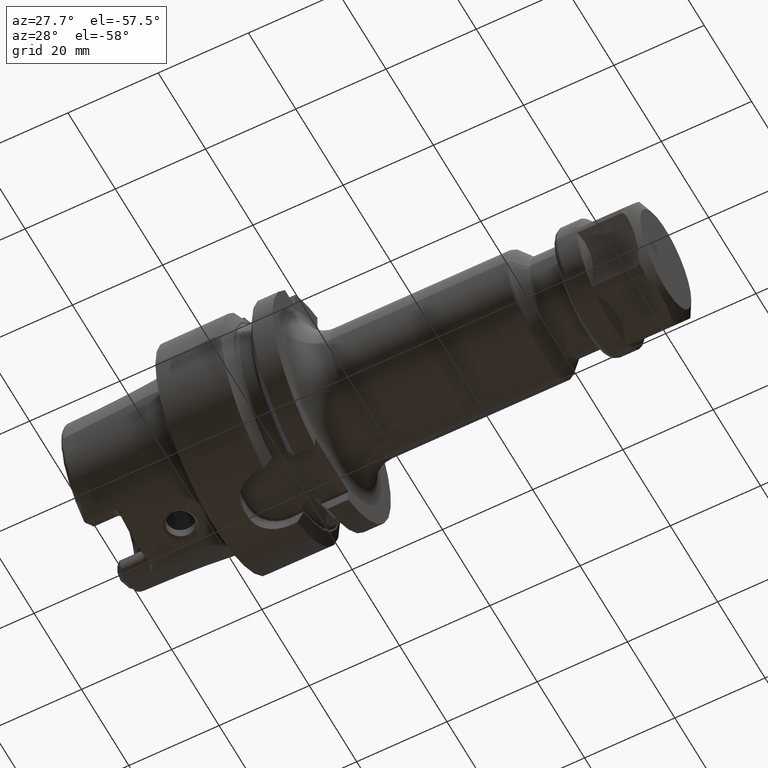
[diagram: clean part render]
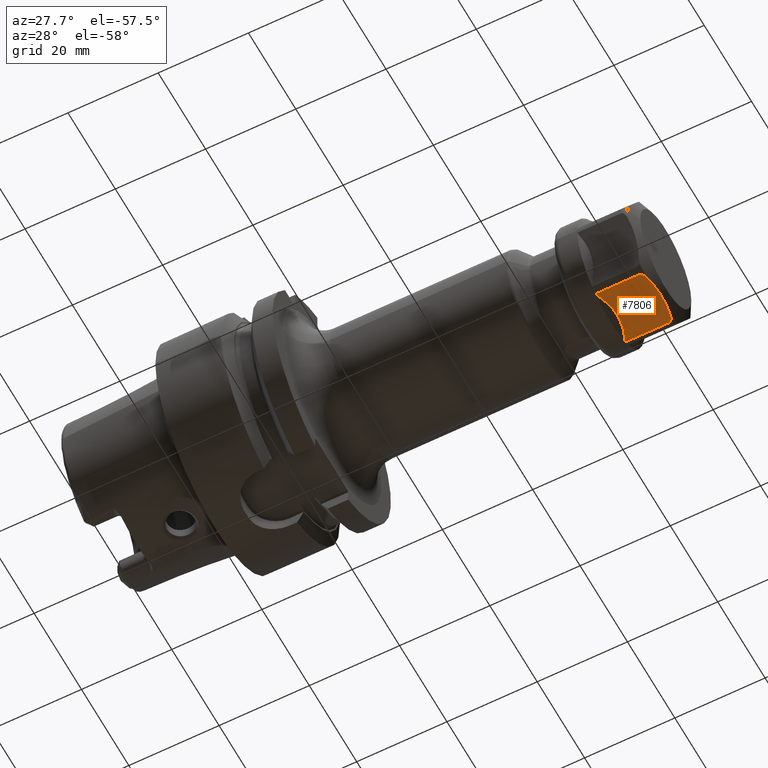
[diagram: same view with one face highlighted and labeled with its STEP entity id]
A machine part, auxiliary view. The second image highlights one B-rep face of the part: STEP entity #7806.
In plain terms, the highlighted planar face has unit normal (0, 0, 1).
Its self-contained STEP definition (entity closure, byte-faithful):
#6980=CARTESIAN_POINT('',(1.628445554338E1,-4.758216577669E0,-1.25E1));
#6981=CARTESIAN_POINT('',(1.644888995402E1,-3.957639929005E0,-1.25E1));
#6982=CARTESIAN_POINT('',(1.670318968294E1,-2.364269791047E0,-1.25E1));
#6983=CARTESIAN_POINT('',(1.683288207547E1,5.894560252869E-4,-1.25E1));
#6984=CARTESIAN_POINT('',(1.670310415631E1,2.364813039561E0,-1.25E1));
#6985=CARTESIAN_POINT('',(1.644884551611E1,3.957856282460E0,-1.25E1));
#6986=CARTESIAN_POINT('',(1.628445554338E1,4.758216577669E0,-1.25E1));
#7080=CARTESIAN_POINT('',(1.628445554338E1,4.758216577669E0,-1.25E1));
#7081=CARTESIAN_POINT('',(1.625780514735E1,4.887968523483E0,-1.25E1));
#7082=CARTESIAN_POINT('',(1.619635457926E1,5.141602008187E0,-1.25E1));
#7083=CARTESIAN_POINT('',(1.606561669937E1,5.515629625230E0,-1.25E1));
#7084=CARTESIAN_POINT('',(1.589737600801E1,5.841380073054E0,-1.25E1));
#7085=CARTESIAN_POINT('',(1.569295978880E1,6.098496038599E0,-1.25E1));
#7086=CARTESIAN_POINT('',(1.545738513995E1,6.265053289239E0,-1.25E1));
#7087=CARTESIAN_POINT('',(1.528945671766E1,6.304760106459E0,-1.25E1));
#7088=CARTESIAN_POINT('',(1.520192378865E1,6.304760106459E0,-1.25E1));
#7100=CARTESIAN_POINT('',(1.520192378865E1,-6.304760106459E0,-1.25E1));
#7101=CARTESIAN_POINT('',(1.529096662636E1,-6.304760106459E0,-1.25E1));
#7102=CARTESIAN_POINT('',(1.546146335283E1,-6.263924243604E0,-1.25E1));
#7103=CARTESIAN_POINT('',(1.570142638899E1,-6.090799069305E0,-1.25E1));
#7104=CARTESIAN_POINT('',(1.590512360841E1,-5.828820593103E0,-1.25E1));
#7105=CARTESIAN_POINT('',(1.607010427330E1,-5.504238892291E0,-1.25E1));
#7106=CARTESIAN_POINT('',(1.619774346523E1,-5.136026796860E0,-1.25E1));
#7107=CARTESIAN_POINT('',(1.625821277607E1,-4.885983914320E0,-1.25E1));
#7108=CARTESIAN_POINT('',(1.628445554338E1,-4.758216577669E0,-1.25E1));
#7235=CARTESIAN_POINT('',(6.999998794328E0,-1.986758806456E-4,
-1.250497818479E1));
#7236=CARTESIAN_POINT('',(6.999995386402E0,-1.083552144487E-1,
-1.250497818479E1));
#7237=CARTESIAN_POINT('',(7.011782449164E0,-3.323384141906E-1,
-1.249768961639E1));
#7238=CARTESIAN_POINT('',(6.991282432065E0,-6.947568549463E-1,
-1.250061906543E1));
#7239=CARTESIAN_POINT('',(6.965721694483E0,-1.081329068169E0,
-1.249983412187E1));
#7240=CARTESIAN_POINT('',(6.922875351362E0,-1.498043433085E0,
-1.250004444709E1));
#7241=CARTESIAN_POINT('',(6.861884217492E0,-1.948292958935E0,
-1.249998808977E1));
#7242=CARTESIAN_POINT('',(6.778307623772E0,-2.434583974992E0,
-1.250000319384E1));
#7243=CARTESIAN_POINT('',(6.667915939400E0,-2.960308612542E0,
-1.249999913487E1));
#7244=CARTESIAN_POINT('',(6.525148358033E0,-3.530599340508E0,
-1.250000026669E1));
#7245=CARTESIAN_POINT('',(6.344629653681E0,-4.147369585013E0,
-1.249999979838E1));
#7246=CARTESIAN_POINT('',(6.120966968902E0,-4.812008049205E0,
-1.250000053980E1));
#7247=CARTESIAN_POINT('',(5.848034096261E0,-5.527648946893E0,
-1.249999804241E1));
#7248=CARTESIAN_POINT('',(5.629244177607E0,-6.040161300141E0,
-1.250000420783E1));
#7249=CARTESIAN_POINT('',(5.510095954753E0,-6.304759140730E0,
-1.250000420783E1));
#7251=DIRECTION('',(9.999999999999E-1,-9.964367159688E-8,4.341630987369E-7));
#7252=VECTOR('',#7251,9.691827833895E0);
#7253=CARTESIAN_POINT('',(5.510095954753E0,-6.304759140730E0,
-1.250000420783E1));
#7254=LINE('',#7253,#7252);
#7255=DIRECTION('',(-1.E0,0.E0,0.E0));
#7256=VECTOR('',#7255,9.691824900383E0);
#7257=CARTESIAN_POINT('',(1.520192378865E1,6.304760106459E0,-1.25E1));
#7258=LINE('',#7257,#7256);
#7259=CARTESIAN_POINT('',(5.510098888264E0,6.304760106459E0,-1.25E1));
#7260=CARTESIAN_POINT('',(5.628841325804E0,6.041063634220E0,-1.25E1));
#7261=CARTESIAN_POINT('',(5.846986479544E0,5.530158187536E0,-1.249999999528E1));
#7262=CARTESIAN_POINT('',(6.119413711240E0,4.816268093814E0,-1.250000001653E1));
#7263=CARTESIAN_POINT('',(6.342901567371E0,4.152810405697E0,-1.249999993859E1));
#7264=CARTESIAN_POINT('',(6.523488842305E0,3.536673008155E0,-1.250000022912E1));
#7265=CARTESIAN_POINT('',(6.666467115183E0,2.966599910294E0,-1.249999914493E1));
#7266=CARTESIAN_POINT('',(6.777190694805E0,2.440435295210E0,-1.250000319114E1));
#7267=CARTESIAN_POINT('',(6.860942679123E0,1.954353884047E0,-1.249998809049E1));
#7268=CARTESIAN_POINT('',(6.922096017902E0,1.504569556370E0,-1.250004444690E1));
#7269=CARTESIAN_POINT('',(6.965204285677E0,1.087421014254E0,-1.249983412192E1));
#7270=CARTESIAN_POINT('',(6.991058489792E0,6.992781139853E-1,
-1.250061906542E1));
#7271=CARTESIAN_POINT('',(7.011781137860E0,3.334458988776E-1,
-1.249768961640E1));
#7272=CARTESIAN_POINT('',(7.000002208658E0,1.081611357337E-1,
-1.250497818479E1));
#7273=CARTESIAN_POINT('',(6.999998794328E0,-1.986758806456E-4,
-1.250497818479E1));
#7516=VERTEX_POINT('',#6980);
#7517=VERTEX_POINT('',#6986);
#7528=VERTEX_POINT('',#7088);
#7529=VERTEX_POINT('',#7100);
#7538=CARTESIAN_POINT('',(5.510019594414E0,6.304795814642E0,-1.250007080131E1));
#7539=CARTESIAN_POINT('',(5.510019594414E0,-6.304795289710E0,
-1.250006976046E1));
#7540=VERTEX_POINT('',#7538);
#7541=VERTEX_POINT('',#7539);
#7557=VERTEX_POINT('',#7273);
#7790=CARTESIAN_POINT('',(1.78E1,7.216878364870E0,-1.25E1));
#7791=DIRECTION('',(0.E0,0.E0,1.E0));
#7792=DIRECTION('',(0.E0,-1.E0,0.E0));
#7793=AXIS2_PLACEMENT_3D('',#7790,#7791,#7792);
#7794=PLANE('',#7793);
#7796=ORIENTED_EDGE('',*,*,#7795,.T.);
#7797=ORIENTED_EDGE('',*,*,#7640,.T.);
#7798=ORIENTED_EDGE('',*,*,#7689,.T.);
#7799=ORIENTED_EDGE('',*,*,#7591,.T.);
#7800=ORIENTED_EDGE('',*,*,#7676,.T.);
#7801=ORIENTED_EDGE('',*,*,#7644,.T.);
#7803=ORIENTED_EDGE('',*,*,#7802,.T.);
#7804=EDGE_LOOP('',(#7796,#7797,#7798,#7799,#7800,#7801,#7803));
#7805=FACE_OUTER_BOUND('',#7804,.F.);
#7806=ADVANCED_FACE('',(#7805),#7794,.F.);
#6987=B_SPLINE_CURVE_WITH_KNOTS('',3,(#6980,#6981,#6982,#6983,#6984,#6985,
#6986),.UNSPECIFIED.,.F.,.F.,(4,1,1,1,4),(0.E0,2.5E-1,5.E-1,7.5E-1,1.E0),
.UNSPECIFIED.);
#7089=B_SPLINE_CURVE_WITH_KNOTS('',3,(#7080,#7081,#7082,#7083,#7084,#7085,#7086,
#7087,#7088),.UNSPECIFIED.,.F.,.F.,(4,1,1,1,1,1,4),(0.E0,1.666666666667E-1,
3.333333333333E-1,5.E-1,6.666666666667E-1,8.333333333333E-1,1.E0),
.UNSPECIFIED.);
#7109=B_SPLINE_CURVE_WITH_KNOTS('',3,(#7100,#7101,#7102,#7103,#7104,#7105,#7106,
#7107,#7108),.UNSPECIFIED.,.F.,.F.,(4,1,1,1,1,1,4),(0.E0,1.666666666667E-1,
3.333333333333E-1,5.E-1,6.666666666667E-1,8.333333333333E-1,1.E0),
.UNSPECIFIED.);
#7250=B_SPLINE_CURVE_WITH_KNOTS('',3,(#7235,#7236,#7237,#7238,#7239,#7240,#7241,
#7242,#7243,#7244,#7245,#7246,#7247,#7248,#7249),.UNSPECIFIED.,.F.,.F.,(4,1,1,1,
1,1,1,1,1,1,1,1,4),(0.E0,8.333333333333E-2,1.666666666667E-1,2.5E-1,
3.333333333333E-1,4.166666666667E-1,5.E-1,5.833333333333E-1,6.666666666667E-1,
7.5E-1,8.333333333333E-1,9.166666666667E-1,1.E0),.UNSPECIFIED.);
#7274=B_SPLINE_CURVE_WITH_KNOTS('',3,(#7259,#7260,#7261,#7262,#7263,#7264,#7265,
#7266,#7267,#7268,#7269,#7270,#7271,#7272,#7273),.UNSPECIFIED.,.F.,.F.,(4,1,1,1,
1,1,1,1,1,1,1,1,4),(0.E0,8.333333333333E-2,1.666666666667E-1,2.5E-1,
3.333333333333E-1,4.166666666667E-1,5.E-1,5.833333333333E-1,6.666666666667E-1,
7.5E-1,8.333333333333E-1,9.166666666667E-1,1.E0),.UNSPECIFIED.);
#7591=EDGE_CURVE('',#7516,#7517,#6987,.T.);
#7640=EDGE_CURVE('',#7541,#7529,#7254,.T.);
#7644=EDGE_CURVE('',#7528,#7540,#7258,.T.);
#7676=EDGE_CURVE('',#7517,#7528,#7089,.T.);
#7689=EDGE_CURVE('',#7529,#7516,#7109,.T.);
#7795=EDGE_CURVE('',#7557,#7541,#7250,.T.);
#7802=EDGE_CURVE('',#7540,#7557,#7274,.T.);